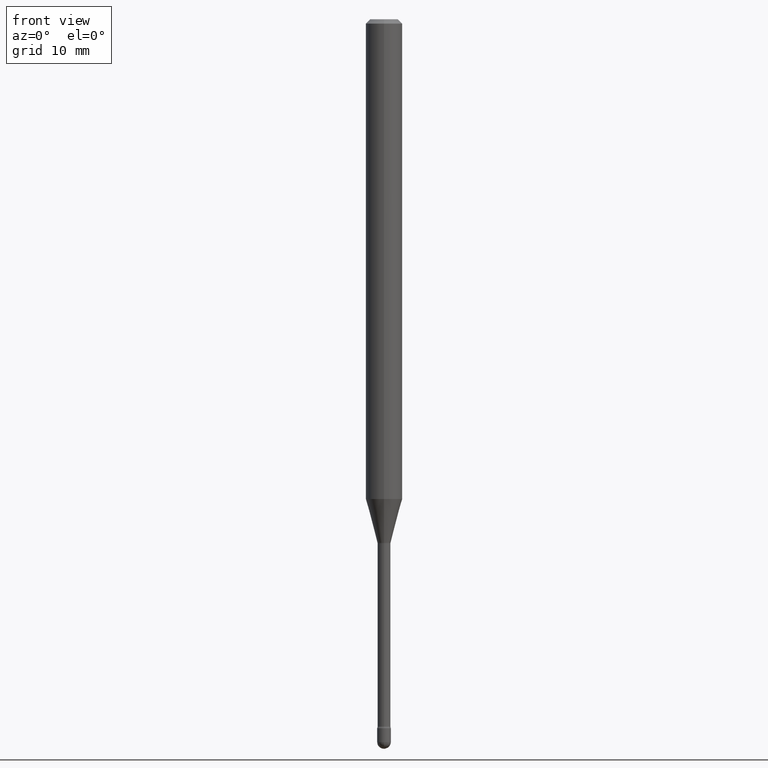
[diagram: clean part render]
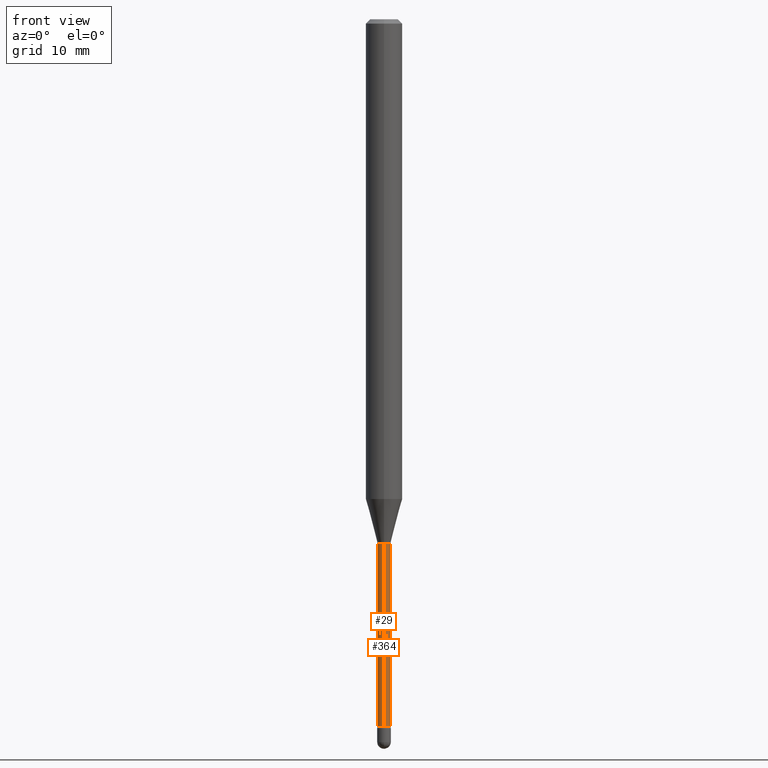
[diagram: same view with one multi-face feature highlighted, each face labeled with its STEP entity id]
A machine part, front view. The highlighted faces form ONE feature: a constant-radius fillet chain: 2 tangent blend faces with common blend radius 0.5613 mm. The faces share edges in the B-rep.
Their STEP definitions:
[1] entity #364 (Cylinder):
#38 = CARTESIAN_POINT ( 'NONE',  ( 1.570299446030416374E-16, 0.02209999999999372536, -1.796974787463811118 ) ) ;
#69 = VERTEX_POINT ( 'NONE', #183 ) ;
#70 = VERTEX_POINT ( 'NONE', #134 ) ;
#84 = AXIS2_PLACEMENT_3D ( 'NONE', #195, #399, #102 ) ;
#100 = ORIENTED_EDGE ( 'NONE', *, *, #395, .T. ) ;
#102 = DIRECTION ( 'NONE',  ( -6.982962677686265922E-15, -1.000000000000000000, 3.491503014300164301E-15 ) ) ;
#105 = CARTESIAN_POINT ( 'NONE',  ( 5.924532826852824023E-29, -8.458767579426945041E-15, -2.422672283192177645 ) ) ;
#107 = LINE ( 'NONE', #401, #451 ) ;
#110 = CIRCLE ( 'NONE', #423, 0.02210000000000008138 ) ;
#122 = CARTESIAN_POINT ( 'NONE',  ( -1.543234751768667826E-16, -0.02210000000000004322, 5.552356155072798907E-16 ) ) ;
#134 = CARTESIAN_POINT ( 'NONE',  ( -1.543234751768078153E-16, -0.02210000000000854337, -2.422672283192177645 ) ) ;
#139 = EDGE_LOOP ( 'NONE', ( #100, #151, #488, #254 ) ) ;
#151 = ORIENTED_EDGE ( 'NONE', *, *, #557, .T. ) ;
#181 = DIRECTION ( 'NONE',  ( -2.445453670294399760E-29, 3.491503014300162329E-15, 1.000000000000000000 ) ) ;
#183 = CARTESIAN_POINT ( 'NONE',  ( -1.543234751768225325E-16, -0.02210000000000627435, -1.796974787463811118 ) ) ;
#195 = CARTESIAN_POINT ( 'NONE',  ( -1.169113584055446105E-44, 1.669184350826100908E-30, 4.780733988912460139E-16 ) ) ;
#207 = VECTOR ( 'NONE', #556, 39.37007874015748143 ) ;
#248 = LINE ( 'NONE', #122, #207 ) ;
#249 = EDGE_CURVE ( 'NONE', #70, #69, #248, .T. ) ;
#254 = ORIENTED_EDGE ( 'NONE', *, *, #249, .F. ) ;
#277 = DIRECTION ( 'NONE',  ( -2.445453670294399480E-29, 3.491503014300162329E-15, 1.000000000000000000 ) ) ;
#297 = VERTEX_POINT ( 'NONE', #38 ) ;
#299 = DIRECTION ( 'NONE',  ( -2.445453670294399480E-29, 3.491503014300162329E-15, 1.000000000000000000 ) ) ;
#311 = CARTESIAN_POINT ( 'NONE',  ( 1.620037437533624565E-16, 0.02209999999999162287, -2.422672283192177645 ) ) ;
#328 = CIRCLE ( 'NONE', #342, 0.02210000000000000159 ) ;
#342 = AXIS2_PLACEMENT_3D ( 'NONE', #516, #299, #514 ) ;
#364 = ADVANCED_FACE ( 'NONE', ( #455 ), #490, .T. ) ;
#395 = EDGE_CURVE ( 'NONE', #70, #542, #110, .T. ) ;
#399 = DIRECTION ( 'NONE',  ( -2.445453670294399480E-29, 3.491503014300162329E-15, 1.000000000000000000 ) ) ;
#401 = CARTESIAN_POINT ( 'NONE',  ( 1.570299446029824235E-16, 0.02210000000000004322, 4.009111822752123344E-16 ) ) ;
#413 = EDGE_CURVE ( 'NONE', #69, #297, #328, .T. ) ;
#423 = AXIS2_PLACEMENT_3D ( 'NONE', #105, #277, #448 ) ;
#448 = DIRECTION ( 'NONE',  ( -6.982962677686265922E-15, -1.000000000000000000, 0.000000000000000000 ) ) ;
#451 = VECTOR ( 'NONE', #181, 39.37007874015748143 ) ;
#455 = FACE_OUTER_BOUND ( 'NONE', #139, .T. ) ;
#488 = ORIENTED_EDGE ( 'NONE', *, *, #413, .F. ) ;
#490 = CYLINDRICAL_SURFACE ( 'NONE', #84, 0.02210000000000004322 ) ;
#514 = DIRECTION ( 'NONE',  ( -6.982962677686265922E-15, -1.000000000000000000, 0.000000000000000000 ) ) ;
#516 = CARTESIAN_POINT ( 'NONE',  ( 4.394418589429875621E-29, -6.274142887051290887E-15, -1.796974787463811118 ) ) ;
#542 = VERTEX_POINT ( 'NONE', #311 ) ;
#556 = DIRECTION ( 'NONE',  ( -2.445453670294399760E-29, 3.491503014300162329E-15, 1.000000000000000000 ) ) ;
#557 = EDGE_CURVE ( 'NONE', #542, #297, #107, .T. ) ;
[2] entity #29 (Cylinder):
#29 = ADVANCED_FACE ( 'NONE', ( #232 ), #305, .T. ) ;
#32 = DIRECTION ( 'NONE',  ( -6.982962677686265922E-15, -1.000000000000000000, 0.000000000000000000 ) ) ;
#36 = DIRECTION ( 'NONE',  ( -2.445453670294399480E-29, 3.491503014300162329E-15, 1.000000000000000000 ) ) ;
#38 = CARTESIAN_POINT ( 'NONE',  ( 1.570299446030416374E-16, 0.02209999999999372536, -1.796974787463811118 ) ) ;
#54 = DIRECTION ( 'NONE',  ( -2.445453670294399480E-29, 3.491503014300162329E-15, 1.000000000000000000 ) ) ;
#69 = VERTEX_POINT ( 'NONE', #183 ) ;
#70 = VERTEX_POINT ( 'NONE', #134 ) ;
#86 = ORIENTED_EDGE ( 'NONE', *, *, #225, .T. ) ;
#107 = LINE ( 'NONE', #401, #451 ) ;
#117 = AXIS2_PLACEMENT_3D ( 'NONE', #298, #301, #32 ) ;
#122 = CARTESIAN_POINT ( 'NONE',  ( -1.543234751768667826E-16, -0.02210000000000004322, 5.552356155072798907E-16 ) ) ;
#134 = CARTESIAN_POINT ( 'NONE',  ( -1.543234751768078153E-16, -0.02210000000000854337, -2.422672283192177645 ) ) ;
#181 = DIRECTION ( 'NONE',  ( -2.445453670294399760E-29, 3.491503014300162329E-15, 1.000000000000000000 ) ) ;
#183 = CARTESIAN_POINT ( 'NONE',  ( -1.543234751768225325E-16, -0.02210000000000627435, -1.796974787463811118 ) ) ;
#205 = EDGE_CURVE ( 'NONE', #297, #69, #293, .T. ) ;
#207 = VECTOR ( 'NONE', #556, 39.37007874015748143 ) ;
#222 = DIRECTION ( 'NONE',  ( -6.982962677686265922E-15, -1.000000000000000000, 3.491503014300164301E-15 ) ) ;
#225 = EDGE_CURVE ( 'NONE', #542, #70, #486, .T. ) ;
#232 = FACE_OUTER_BOUND ( 'NONE', #504, .T. ) ;
#248 = LINE ( 'NONE', #122, #207 ) ;
#249 = EDGE_CURVE ( 'NONE', #70, #69, #248, .T. ) ;
#293 = CIRCLE ( 'NONE', #117, 0.02210000000000000159 ) ;
#297 = VERTEX_POINT ( 'NONE', #38 ) ;
#298 = CARTESIAN_POINT ( 'NONE',  ( 4.394418589429875621E-29, -6.274142887051290887E-15, -1.796974787463811118 ) ) ;
#301 = DIRECTION ( 'NONE',  ( -2.445453670294399480E-29, 3.491503014300162329E-15, 1.000000000000000000 ) ) ;
#305 = CYLINDRICAL_SURFACE ( 'NONE', #560, 0.02210000000000004322 ) ;
#311 = CARTESIAN_POINT ( 'NONE',  ( 1.620037437533624565E-16, 0.02209999999999162287, -2.422672283192177645 ) ) ;
#320 = ORIENTED_EDGE ( 'NONE', *, *, #205, .F. ) ;
#339 = DIRECTION ( 'NONE',  ( -6.982962677686265922E-15, -1.000000000000000000, 0.000000000000000000 ) ) ;
#363 = ORIENTED_EDGE ( 'NONE', *, *, #557, .F. ) ;
#400 = ORIENTED_EDGE ( 'NONE', *, *, #249, .T. ) ;
#401 = CARTESIAN_POINT ( 'NONE',  ( 1.570299446029824235E-16, 0.02210000000000004322, 4.009111822752123344E-16 ) ) ;
#428 = AXIS2_PLACEMENT_3D ( 'NONE', #518, #36, #339 ) ;
#451 = VECTOR ( 'NONE', #181, 39.37007874015748143 ) ;
#486 = CIRCLE ( 'NONE', #428, 0.02210000000000008138 ) ;
#489 = CARTESIAN_POINT ( 'NONE',  ( -1.169113584055446105E-44, 1.669184350826100908E-30, 4.780733988912460139E-16 ) ) ;
#504 = EDGE_LOOP ( 'NONE', ( #363, #86, #400, #320 ) ) ;
#518 = CARTESIAN_POINT ( 'NONE',  ( 5.924532826852824023E-29, -8.458767579426945041E-15, -2.422672283192177645 ) ) ;
#542 = VERTEX_POINT ( 'NONE', #311 ) ;
#556 = DIRECTION ( 'NONE',  ( -2.445453670294399760E-29, 3.491503014300162329E-15, 1.000000000000000000 ) ) ;
#557 = EDGE_CURVE ( 'NONE', #542, #297, #107, .T. ) ;
#560 = AXIS2_PLACEMENT_3D ( 'NONE', #489, #54, #222 ) ;